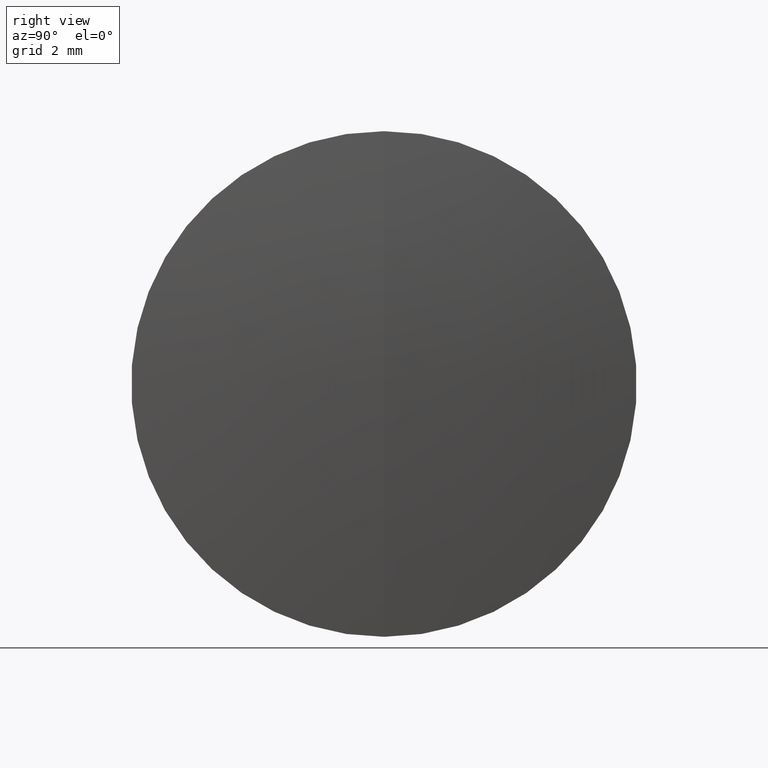
[diagram: clean part render]
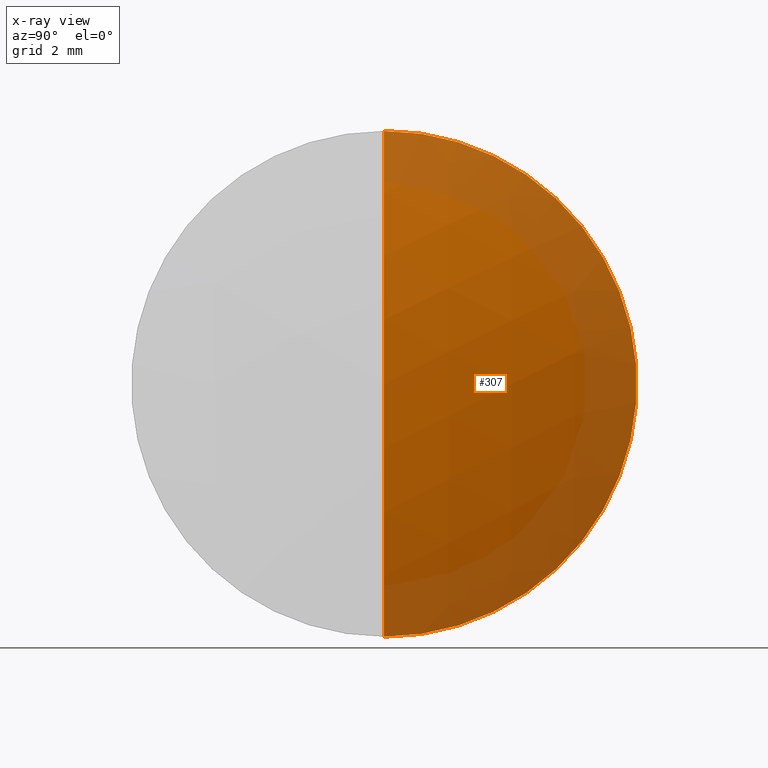
[diagram: x-ray — body ghosted, one internal face saturated and labeled with its STEP entity id]
A machine part, right view, then the same camera in x-ray: the body is ghosted and one INTERNAL B-rep face — a face not visible from any outside direction — is saturated and labeled: STEP entity #307.
In plain terms, the highlighted spherical surface has radius 23.187 mm.
Its self-contained STEP definition (entity closure, byte-faithful):
#12 = CARTESIAN_POINT ( 'NONE',  ( 15.01622892942437200, 0.0000000000000000000, 1.446899320903621900E-015 ) ) ;
#17 = CARTESIAN_POINT ( 'NONE',  ( -8.170771070575630900, 0.0000000000000000000, 2.710505431213761100E-017 ) ) ;
#31 = DIRECTION ( 'NONE',  ( 0.0000000000000000000, -1.224646799147353500E-016, 1.000000000000000000 ) ) ;
#47 = DIRECTION ( 'NONE',  ( -1.000000000000000000, -0.0000000000000000000, -0.0000000000000000000 ) ) ;
#53 = DIRECTION ( 'NONE',  ( 0.0000000000000000000, -1.000000000000000000, 0.0000000000000000000 ) ) ;
#54 = VERTEX_POINT ( 'NONE', #339 ) ;
#61 = DIRECTION ( 'NONE',  ( 0.0000000000000000000, 0.0000000000000000000, 1.000000000000000000 ) ) ;
#69 = AXIS2_PLACEMENT_3D ( 'NONE', #17, #53, #198 ) ;
#72 = EDGE_CURVE ( 'NONE', #54, #136, #224, .T. ) ;
#93 = DIRECTION ( 'NONE',  ( 0.0000000000000000000, 0.0000000000000000000, 1.000000000000000000 ) ) ;
#97 = ORIENTED_EDGE ( 'NONE', *, *, #244, .T. ) ;
#107 = EDGE_LOOP ( 'NONE', ( #187, #97, #194 ) ) ;
#115 = DIRECTION ( 'NONE',  ( 0.0000000000000000000, 1.000000000000000000, 0.0000000000000000000 ) ) ;
#119 = CARTESIAN_POINT ( 'NONE',  ( 13.76976148905017500, 9.184850993605147900E-016, -7.500000000000000000 ) ) ;
#136 = VERTEX_POINT ( 'NONE', #119 ) ;
#177 = CIRCLE ( 'NONE', #69, 23.18700000000000100 ) ;
#180 = DIRECTION ( 'NONE',  ( -0.0000000000000000000, 1.000000000000000000, 1.224646799147353200E-016 ) ) ;
#187 = ORIENTED_EDGE ( 'NONE', *, *, #306, .F. ) ;
#188 = CIRCLE ( 'NONE', #223, 23.18700000000000100 ) ;
#191 = CARTESIAN_POINT ( 'NONE',  ( -8.170771070575630900, 0.0000000000000000000, 2.710505431213761100E-017 ) ) ;
#194 = ORIENTED_EDGE ( 'NONE', *, *, #72, .F. ) ;
#198 = DIRECTION ( 'NONE',  ( 0.0000000000000000000, 0.0000000000000000000, -1.000000000000000000 ) ) ;
#223 = AXIS2_PLACEMENT_3D ( 'NONE', #263, #180, #31 ) ;
#224 = CIRCLE ( 'NONE', #290, 7.500000000000000000 ) ;
#244 = EDGE_CURVE ( 'NONE', #267, #136, #188, .T. ) ;
#263 = CARTESIAN_POINT ( 'NONE',  ( -8.170771070575630900, 0.0000000000000000000, 2.710505431213761100E-017 ) ) ;
#267 = VERTEX_POINT ( 'NONE', #12 ) ;
#279 = SPHERICAL_SURFACE ( 'NONE', #343, 23.18700000000000100 ) ;
#290 = AXIS2_PLACEMENT_3D ( 'NONE', #335, #47, #61 ) ;
#306 = EDGE_CURVE ( 'NONE', #267, #54, #177, .T. ) ;
#307 = ADVANCED_FACE ( 'NONE', ( #319 ), #279, .T. ) ;
#319 = FACE_OUTER_BOUND ( 'NONE', #107, .T. ) ;
#335 = CARTESIAN_POINT ( 'NONE',  ( 13.76976148905017500, 0.0000000000000000000, 0.0000000000000000000 ) ) ;
#339 = CARTESIAN_POINT ( 'NONE',  ( 13.76976148905017500, 0.0000000000000000000, 7.500000000000000000 ) ) ;
#343 = AXIS2_PLACEMENT_3D ( 'NONE', #191, #115, #93 ) ;